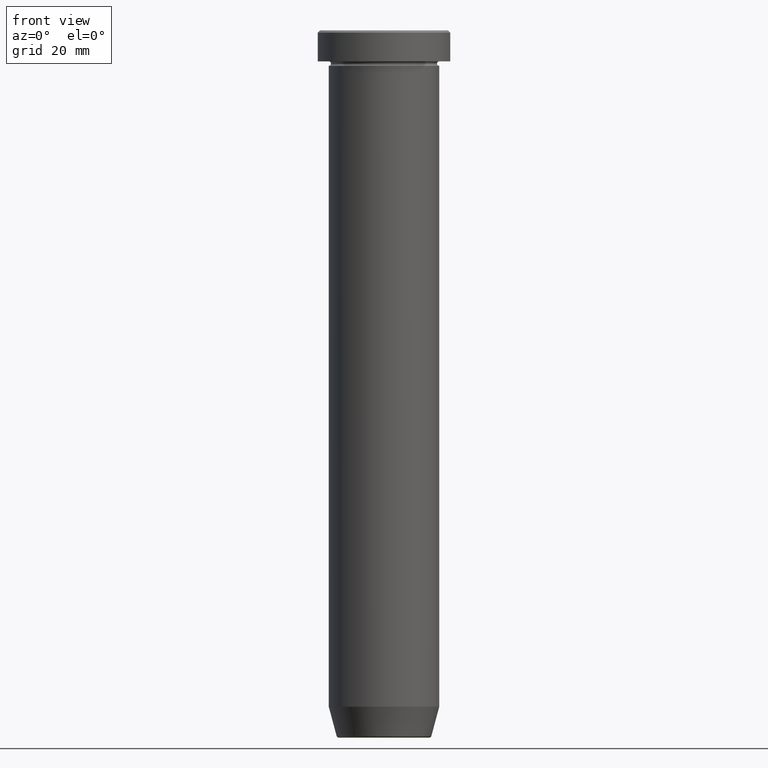
[diagram: clean part render]
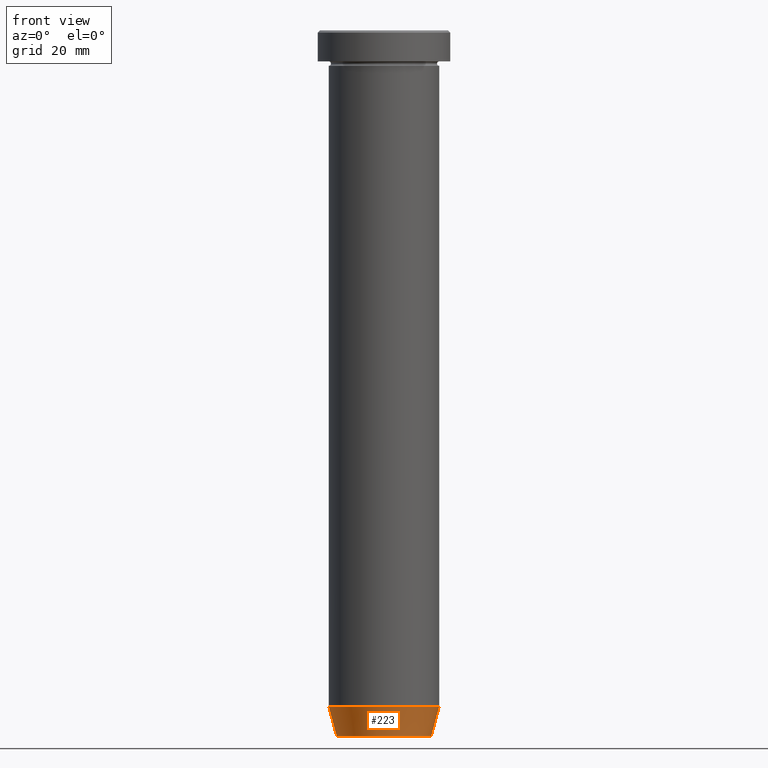
[diagram: same view with one face highlighted and labeled with its STEP entity id]
A machine part, front view. The second image highlights one B-rep face of the part: STEP entity #223.
In plain terms, the highlighted conical surface has half-angle 15 deg.
Its self-contained STEP definition (entity closure, byte-faithful):
#1 = ORIENTED_EDGE ( 'NONE', *, *, #61, .T. ) ;
#2 = CONICAL_SURFACE ( 'NONE', #395, 10.62435565298213902, 0.2617993877991495744 ) ;
#15 = DIRECTION ( 'NONE',  ( 1.000000000000000000, 0.000000000000000000, 0.000000000000000000 ) ) ;
#21 = DIRECTION ( 'NONE',  ( -0.2588190451025209060, 3.169619151431766790E-17, 0.9659258262890682012 ) ) ;
#53 = VERTEX_POINT ( 'NONE', #126 ) ;
#56 = VERTEX_POINT ( 'NONE', #353 ) ;
#61 = EDGE_CURVE ( 'NONE', #56, #230, #76, .T. ) ;
#73 = CARTESIAN_POINT ( 'NONE',  ( -10.62435565298213902, 1.301108314342766318E-15, -160.0000000000000000 ) ) ;
#76 = CIRCLE ( 'NONE', #211, 10.72365507213719482 ) ;
#91 = CARTESIAN_POINT ( 'NONE',  ( 10.72365507213719305, 0.000000000000000000, -159.6294095225512706 ) ) ;
#107 = EDGE_CURVE ( 'NONE', #56, #480, #587, .T. ) ;
#121 = DIRECTION ( 'NONE',  ( -1.000000000000000000, 0.000000000000000000, 0.000000000000000000 ) ) ;
#126 = CARTESIAN_POINT ( 'NONE',  ( 12.50000000000000000, 0.000000000000000000, -153.0000000000000000 ) ) ;
#157 = EDGE_LOOP ( 'NONE', ( #347, #1, #333, #554 ) ) ;
#182 = CARTESIAN_POINT ( 'NONE',  ( 0.000000000000000000, 0.000000000000000000, -160.0000000000000000 ) ) ;
#184 = DIRECTION ( 'NONE',  ( 1.000000000000000000, 0.000000000000000000, 0.000000000000000000 ) ) ;
#211 = AXIS2_PLACEMENT_3D ( 'NONE', #361, #450, #121 ) ;
#223 = ADVANCED_FACE ( 'NONE', ( #505 ), #2, .T. ) ;
#230 = VERTEX_POINT ( 'NONE', #91 ) ;
#247 = CARTESIAN_POINT ( 'NONE',  ( -12.50000000000000000, 1.530808498934191521E-15, -153.0000000000000000 ) ) ;
#267 = VECTOR ( 'NONE', #553, 1000.000000000000000 ) ;
#332 = DIRECTION ( 'NONE',  ( -0.000000000000000000, -0.000000000000000000, 1.000000000000000000 ) ) ;
#333 = ORIENTED_EDGE ( 'NONE', *, *, #334, .T. ) ;
#334 = EDGE_CURVE ( 'NONE', #230, #53, #463, .T. ) ;
#340 = CARTESIAN_POINT ( 'NONE',  ( 0.000000000000000000, 0.000000000000000000, -153.0000000000000000 ) ) ;
#347 = ORIENTED_EDGE ( 'NONE', *, *, #107, .F. ) ;
#353 = CARTESIAN_POINT ( 'NONE',  ( -10.72365507213719305, 1.422038742429750516E-15, -159.6294095225512706 ) ) ;
#361 = CARTESIAN_POINT ( 'NONE',  ( 0.000000000000000000, 0.000000000000000000, -159.6294095225512706 ) ) ;
#368 = CARTESIAN_POINT ( 'NONE',  ( 10.62435565298213902, 0.000000000000000000, -160.0000000000000000 ) ) ;
#378 = CIRCLE ( 'NONE', #396, 12.50000000000000000 ) ;
#395 = AXIS2_PLACEMENT_3D ( 'NONE', #182, #332, #184 ) ;
#396 = AXIS2_PLACEMENT_3D ( 'NONE', #340, #479, #15 ) ;
#425 = VECTOR ( 'NONE', #21, 1000.000000000000000 ) ;
#450 = DIRECTION ( 'NONE',  ( -0.000000000000000000, -0.000000000000000000, 1.000000000000000000 ) ) ;
#461 = EDGE_CURVE ( 'NONE', #480, #53, #378, .T. ) ;
#463 = LINE ( 'NONE', #368, #267 ) ;
#479 = DIRECTION ( 'NONE',  ( -0.000000000000000000, -0.000000000000000000, 1.000000000000000000 ) ) ;
#480 = VERTEX_POINT ( 'NONE', #247 ) ;
#505 = FACE_OUTER_BOUND ( 'NONE', #157, .T. ) ;
#553 = DIRECTION ( 'NONE',  ( 0.2588190451025209060, 0.000000000000000000, 0.9659258262890682012 ) ) ;
#554 = ORIENTED_EDGE ( 'NONE', *, *, #461, .F. ) ;
#587 = LINE ( 'NONE', #73, #425 ) ;